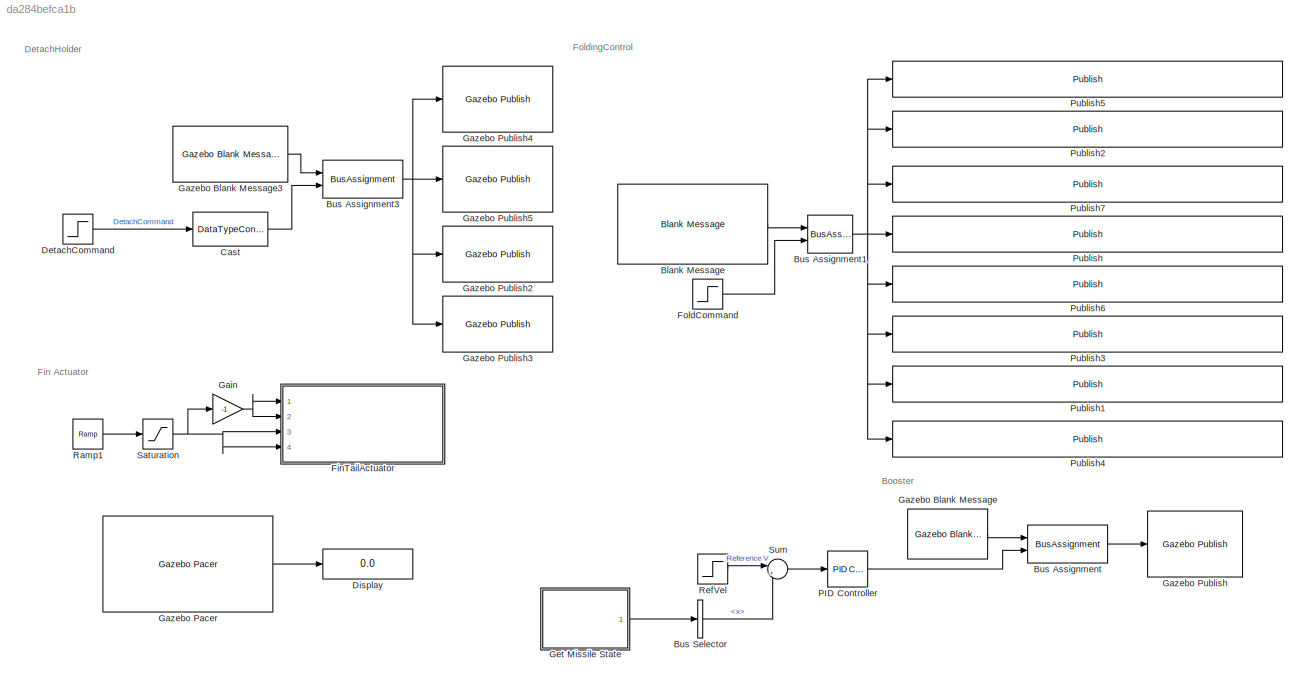
MODEL slx_da284befca1b
KIND model
CONFIG AbsTol = auto
CONFIG EnableMultiTasking = off
CONFIG FixedStep = 0.001
CONFIG MaxStep = auto
CONFIG MinStep = auto
CONFIG RelTol = 1e-3
CONFIG SampleTimeConstraint = Unconstrained
CONFIG SolverName = FixedStepAuto
CONFIG StartTime = 0.0
CONFIG StopTime = 2
BLOCK [Reference] Blank Message  REF=robotlib/Blank Message
  Ports = [0, 1]
  SourceBlock = robotlib/Blank Message
  SourceProductBaseCode = RR
  SourceType = ROS Blank Message
BLOCK [BusAssignment] Bus Assignment
  AssignedSignals = data
  Ports = [2, 1]
BLOCK [BusAssignment] Bus Assignment1
  AssignedSignals = Data
  Ports = [2, 1]
BLOCK [BusAssignment] Bus Assignment3
  AssignedSignals = data
  Ports = [2, 1]
BLOCK [BusSelector] Bus Selector
  OutputSignals = LinearVelocity.x
  Ports = [1, 1]
BLOCK [DataTypeConversion] Cast
  OutDataTypeStr = int32
  RndMeth = Floor
  SaturateOnIntegerOverflow = off
BLOCK [Step] DetachCommand
  SampleTime = 0
  Time = 0.15
BLOCK [Display] Display
  Decimation = 1
  Ports = [1]
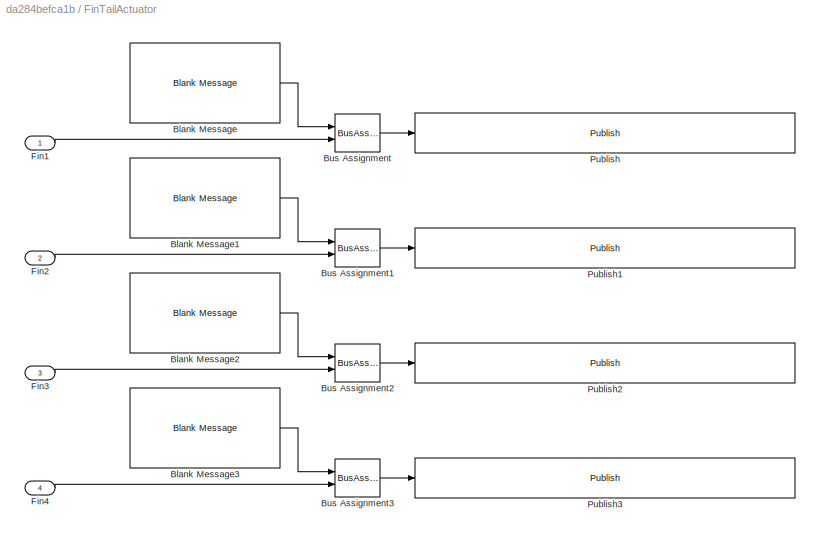
BLOCK [SubSystem] FinTailActuator
  Ports = [4]
  RequestExecContextInheritance = off
BLOCK [Reference] FinTailActuator/Blank Message  REF=robotlib/Blank Message
  Ports = [0, 1]
  SourceBlock = robotlib/Blank Message
  SourceProductBaseCode = RR
  SourceType = ROS Blank Message
BLOCK [Reference] FinTailActuator/Blank Message1  REF=robotlib/Blank Message
  Ports = [0, 1]
  SourceBlock = robotlib/Blank Message
  SourceProductBaseCode = RR
  SourceType = ROS Blank Message
BLOCK [Reference] FinTailActuator/Blank Message2  REF=robotlib/Blank Message
  Ports = [0, 1]
  SourceBlock = robotlib/Blank Message
  SourceProductBaseCode = RR
  SourceType = ROS Blank Message
BLOCK [Reference] FinTailActuator/Blank Message3  REF=robotlib/Blank Message
  Ports = [0, 1]
  SourceBlock = robotlib/Blank Message
  SourceProductBaseCode = RR
  SourceType = ROS Blank Message
BLOCK [BusAssignment] FinTailActuator/Bus Assignment
  AssignedSignals = Data
  Ports = [2, 1]
BLOCK [BusAssignment] FinTailActuator/Bus Assignment1
  AssignedSignals = Data
  Ports = [2, 1]
BLOCK [BusAssignment] FinTailActuator/Bus Assignment2
  AssignedSignals = Data
  Ports = [2, 1]
BLOCK [BusAssignment] FinTailActuator/Bus Assignment3
  AssignedSignals = Data
  Ports = [2, 1]
BLOCK [Inport] FinTailActuator/Fin1
BLOCK [Inport] FinTailActuator/Fin2
  Port = 2
BLOCK [Inport] FinTailActuator/Fin3
  Port = 3
BLOCK [Inport] FinTailActuator/Fin4
  Port = 4
BLOCK [Reference] FinTailActuator/Publish  REF=robotlib/Publish
  Ports = [1]
  SourceBlock = robotlib/Publish
  SourceProductBaseCode = RR
  SourceType = ROS Publish
BLOCK [Reference] FinTailActuator/Publish1  REF=robotlib/Publish
  Ports = [1]
  SourceBlock = robotlib/Publish
  SourceProductBaseCode = RR
  SourceType = ROS Publish
BLOCK [Reference] FinTailActuator/Publish2  REF=robotlib/Publish
  Ports = [1]
  SourceBlock = robotlib/Publish
  SourceProductBaseCode = RR
  SourceType = ROS Publish
BLOCK [Reference] FinTailActuator/Publish3  REF=robotlib/Publish
  Ports = [1]
  SourceBlock = robotlib/Publish
  SourceProductBaseCode = RR
  SourceType = ROS Publish
BLOCK [Step] FoldCommand
  After = deg2rad(123)
  SampleTime = 0
  Time = 0.3
BLOCK [Gain] Gain
  Gain = -1
BLOCK [Reference] Gazebo Blank Message  REF=robotgazebolib/Gazebo Blank Message
  Ports = [0, 1]
  SourceBlock = robotgazebolib/Gazebo Blank Message
  SourceProductBaseCode = RO
  SourceType = Gazebo Blank Message
BLOCK [Reference] Gazebo Blank Message3  REF=robotgazebolib/Gazebo Blank Message
  Ports = [0, 1]
  SourceBlock = robotgazebolib/Gazebo Blank Message
  SourceProductBaseCode = RO
  SourceType = Gazebo Blank Message
BLOCK [Reference] Gazebo Pacer  REF=robotgazebolib/Gazebo Pacer
  Ports = [0, 1]
  SourceBlock = robotgazebolib/Gazebo Pacer
  SourceProductBaseCode = RO
  SourceType = Gazebo Pacer
BLOCK [Reference] Gazebo Publish  REF=robotgazebolib/Gazebo Publish
  Ports = [1]
  SourceBlock = robotgazebolib/Gazebo Publish
  SourceProductBaseCode = RO
  SourceType = Gazebo Publish
BLOCK [Reference] Gazebo Publish2  REF=robotgazebolib/Gazebo Publish
  Ports = [1]
  SourceBlock = robotgazebolib/Gazebo Publish
  SourceProductBaseCode = RO
  SourceType = Gazebo Publish
BLOCK [Reference] Gazebo Publish3  REF=robotgazebolib/Gazebo Publish
  Ports = [1]
  SourceBlock = robotgazebolib/Gazebo Publish
  SourceProductBaseCode = RO
  SourceType = Gazebo Publish
BLOCK [Reference] Gazebo Publish4  REF=robotgazebolib/Gazebo Publish
  Ports = [1]
  SourceBlock = robotgazebolib/Gazebo Publish
  SourceProductBaseCode = RO
  SourceType = Gazebo Publish
BLOCK [Reference] Gazebo Publish5  REF=robotgazebolib/Gazebo Publish
  Ports = [1]
  SourceBlock = robotgazebolib/Gazebo Publish
  SourceProductBaseCode = RO
  SourceType = Gazebo Publish
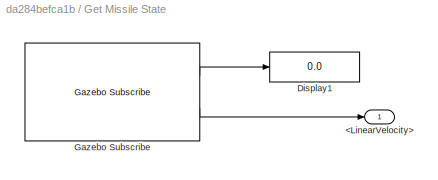
BLOCK [SubSystem] Get Missile State
  Ports = [0, 1]
  RequestExecContextInheritance = off
BLOCK [Outport] Get Missile State/<LinearVelocity>
BLOCK [Display] Get Missile State/Display1
  Decimation = 1
  Ports = [1]
BLOCK [Reference] Get Missile State/Gazebo Subscribe  REF=robotgazebolib/Gazebo Subscribe
  Ports = [0, 2]
  SourceBlock = robotgazebolib/Gazebo Subscribe
  SourceProductBaseCode = RO
  SourceType = Gazebo Subscribe
BLOCK [Reference] PID Controller  REF=slpidlib/PID Controller
  Ports = [1, 1]
  SourceBlock = slpidlib/PID Controller
  SourceProductBaseCode = SL
  SourceType = PID 1dof
BLOCK [Reference] Publish  REF=robotlib/Publish
  Ports = [1]
  SourceBlock = robotlib/Publish
  SourceProductBaseCode = RR
  SourceType = ROS Publish
BLOCK [Reference] Publish1  REF=robotlib/Publish
  Ports = [1]
  SourceBlock = robotlib/Publish
  SourceProductBaseCode = RR
  SourceType = ROS Publish
BLOCK [Reference] Publish2  REF=robotlib/Publish
  Ports = [1]
  SourceBlock = robotlib/Publish
  SourceProductBaseCode = RR
  SourceType = ROS Publish
BLOCK [Reference] Publish3  REF=robotlib/Publish
  Ports = [1]
  SourceBlock = robotlib/Publish
  SourceProductBaseCode = RR
  SourceType = ROS Publish
BLOCK [Reference] Publish4  REF=robotlib/Publish
  Ports = [1]
  SourceBlock = robotlib/Publish
  SourceProductBaseCode = RR
  SourceType = ROS Publish
BLOCK [Reference] Publish5  REF=robotlib/Publish
  Ports = [1]
  SourceBlock = robotlib/Publish
  SourceProductBaseCode = RR
  SourceType = ROS Publish
BLOCK [Reference] Publish6  REF=robotlib/Publish
  Ports = [1]
  SourceBlock = robotlib/Publish
  SourceProductBaseCode = RR
  SourceType = ROS Publish
BLOCK [Reference] Publish7  REF=robotlib/Publish
  Ports = [1]
  SourceBlock = robotlib/Publish
  SourceProductBaseCode = RR
  SourceType = ROS Publish
BLOCK [Reference] Ramp1  REF=simulink/Sources/Ramp
  Ports = [0, 1]
  SourceBlock = simulink/Sources/Ramp
  SourceProductBaseCode = SL
  SourceType = Ramp
BLOCK [Step] RefVel
  After = 250
  SampleTime = 0
  Time = 1e-3
BLOCK [Saturate] Saturation
  LowerLimit = -deg2rad(10)
  UpperLimit = deg2rad(10)
BLOCK [Sum] Sum
  Inputs = |+-
  Ports = [2, 1]
ANNOTATION (root): Booster
ANNOTATION (root): DetachHolder
ANNOTATION (root): Fin Actuator
ANNOTATION (root): FoldingControl
LINE Blank Message:1 -> Bus Assignment1:1
NET Bus Assignment1:1 -> Publish1:1, Publish2:1, Publish3:1, Publish4:1, Publish5:1, Publish6:1, Publish7:1, Publish:1
NET Bus Assignment3:1 -> Gazebo Publish2:1, Gazebo Publish3:1, Gazebo Publish4:1, Gazebo Publish5:1
LINE Bus Assignment:1 -> Gazebo Publish:1
LINE Bus Selector:1 -> Sum:2
LINE Cast:1 -> Bus Assignment3:2
LINE DetachCommand:1 -> Cast:1
LINE FinTailActuator/Blank Message1:1 -> FinTailActuator/Bus Assignment1:1
LINE FinTailActuator/Blank Message2:1 -> FinTailActuator/Bus Assignment2:1
LINE FinTailActuator/Blank Message3:1 -> FinTailActuator/Bus Assignment3:1
LINE FinTailActuator/Blank Message:1 -> FinTailActuator/Bus Assignment:1
LINE FinTailActuator/Bus Assignment1:1 -> FinTailActuator/Publish1:1
LINE FinTailActuator/Bus Assignment2:1 -> FinTailActuator/Publish2:1
LINE FinTailActuator/Bus Assignment3:1 -> FinTailActuator/Publish3:1
LINE FinTailActuator/Bus Assignment:1 -> FinTailActuator/Publish:1
LINE FinTailActuator/Fin1:1 -> FinTailActuator/Bus Assignment:2
LINE FinTailActuator/Fin2:1 -> FinTailActuator/Bus Assignment1:2
LINE FinTailActuator/Fin3:1 -> FinTailActuator/Bus Assignment2:2
LINE FinTailActuator/Fin4:1 -> FinTailActuator/Bus Assignment3:2
LINE FoldCommand:1 -> Bus Assignment1:2
NET Gain:1 -> FinTailActuator:1, FinTailActuator:2
LINE Gazebo Blank Message3:1 -> Bus Assignment3:1
LINE Gazebo Blank Message:1 -> Bus Assignment:1
LINE Gazebo Pacer:1 -> Display:1
LINE Get Missile State/Gazebo Subscribe:1 -> Get Missile State/Display1:1
LINE Get Missile State/Gazebo Subscribe:2 -> Get Missile State/<LinearVelocity>:1
LINE Get Missile State:1 -> Bus Selector:1
LINE PID Controller:1 -> Bus Assignment:2
LINE Ramp1:1 -> Saturation:1
LINE RefVel:1 -> Sum:1
NET Saturation:1 -> FinTailActuator:3, FinTailActuator:4, Gain:1
LINE Sum:1 -> PID Controller:1
note: NET lines group one-source signal fan-out (src -> all destinations, sorted); 1:1 wires keep LINE
